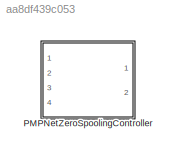
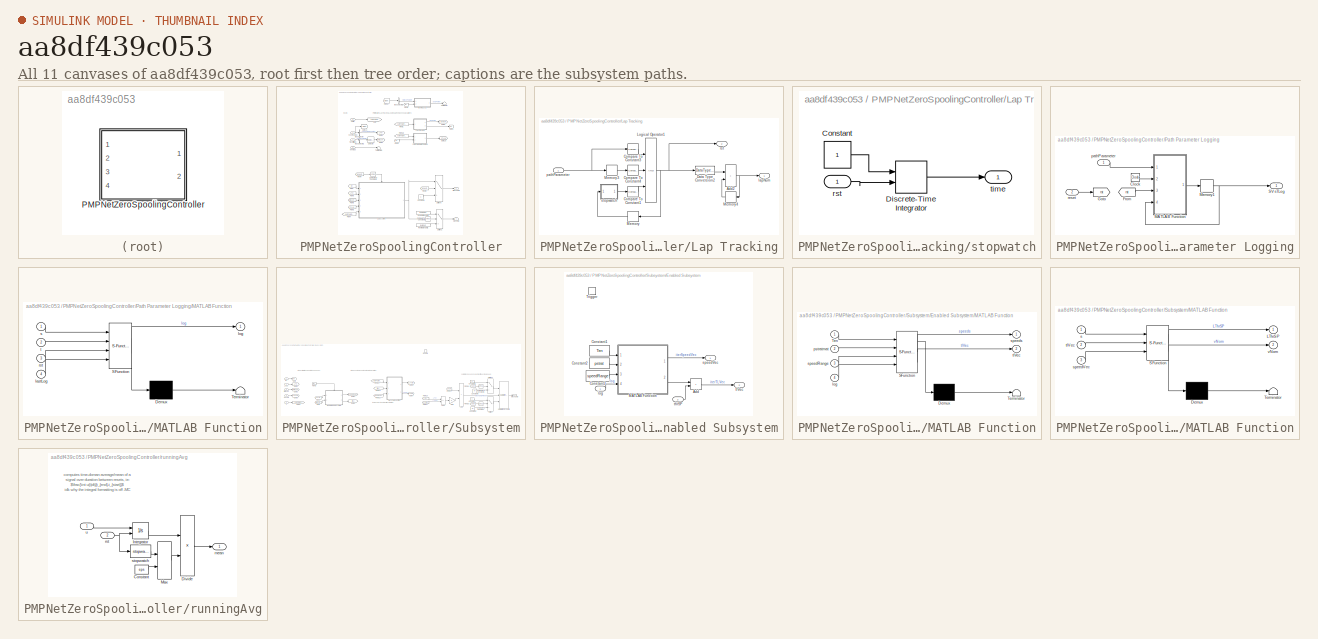
[diagram: thumbnail index - all 11 canvases of the model, root first then tree order]
MODEL slx_aa8df439c053
KIND library
CONFIG AbsTol = auto
CONFIG EnableMultiTasking = off
CONFIG FixedStep = auto
CONFIG MaxStep = auto
CONFIG MinStep = auto
CONFIG RelTol = 1e-3
CONFIG SampleTimeConstraint = Unconstrained
CONFIG SolverName = VariableStepAuto
CONFIG StartTime = 0.0
CONFIG StopTime = 10.0
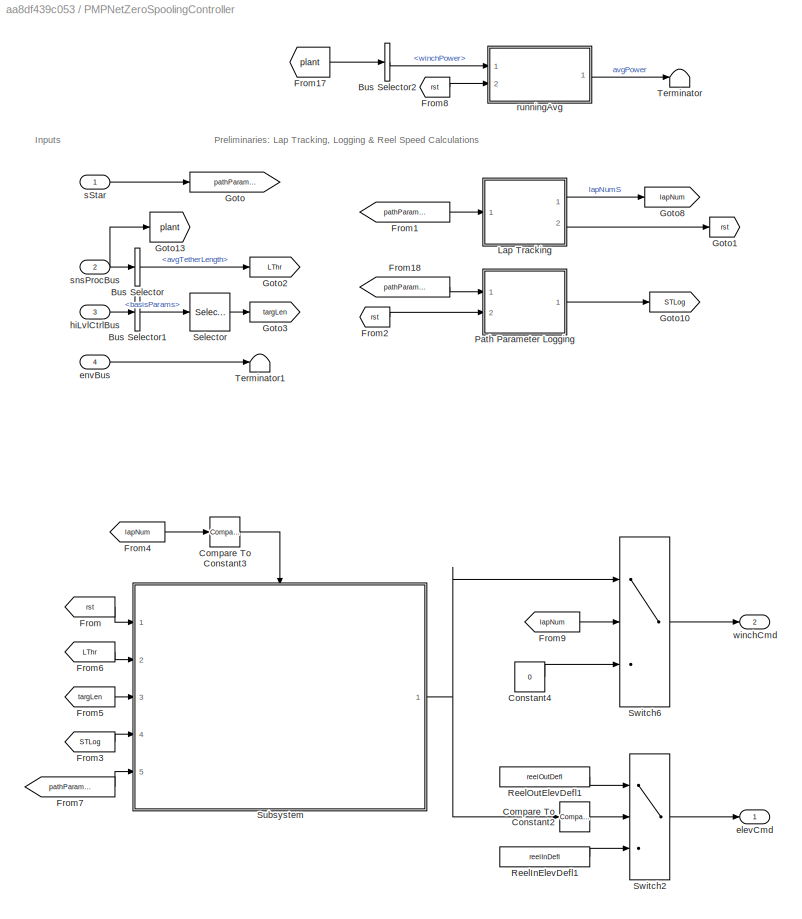
BLOCK [SubSystem] PMPNetZeroSpoolingController
  Ports = [4, 2]
  RequestExecContextInheritance = off
  VariantControl = strcmpi(SPOOLINGCONTROLLER,'PMPNetZeroSpoolingController')
BLOCK [BusSelector] PMPNetZeroSpoolingController/Bus Selector
  OutputSignals = avgTetherLength
  Ports = [1, 1]
BLOCK [BusSelector] PMPNetZeroSpoolingController/Bus Selector1
  OutputSignals = basisParams
  Ports = [1, 1]
BLOCK [BusSelector] PMPNetZeroSpoolingController/Bus Selector2
  OutputSignals = winchPower
  Ports = [1, 1]
BLOCK [Reference] PMPNetZeroSpoolingController/Compare To Constant2  REF=simulink/Logic and Bit
Operations/Compare
To Constant
  Ports = [1, 1]
  SourceBlock = simulink/Logic and Bit\nOperations/Compare\nTo Constant
  SourceProductBaseCode = SL
  SourceType = Compare To Constant
BLOCK [Reference] PMPNetZeroSpoolingController/Compare To Constant3  REF=simulink/Logic and Bit
Operations/Compare
To Constant
  Ports = [1, 1]
  SourceBlock = simulink/Logic and Bit\nOperations/Compare\nTo Constant
  SourceProductBaseCode = SL
  SourceType = Compare To Constant
BLOCK [Constant] PMPNetZeroSpoolingController/Constant4
  Value = 0
BLOCK [From] PMPNetZeroSpoolingController/From
  GotoTag = rst
BLOCK [From] PMPNetZeroSpoolingController/From1
  GotoTag = pathParameter
BLOCK [From] PMPNetZeroSpoolingController/From17
  GotoTag = plant
BLOCK [From] PMPNetZeroSpoolingController/From18
  GotoTag = pathParameter
BLOCK [From] PMPNetZeroSpoolingController/From2
  GotoTag = rst
BLOCK [From] PMPNetZeroSpoolingController/From3
  GotoTag = STLog
BLOCK [From] PMPNetZeroSpoolingController/From4
  GotoTag = lapNum
BLOCK [From] PMPNetZeroSpoolingController/From5
  GotoTag = targLen
BLOCK [From] PMPNetZeroSpoolingController/From6
  GotoTag = LThr
BLOCK [From] PMPNetZeroSpoolingController/From7
  GotoTag = pathParameter
BLOCK [From] PMPNetZeroSpoolingController/From8
  GotoTag = rst
BLOCK [From] PMPNetZeroSpoolingController/From9
  GotoTag = lapNum
BLOCK [Goto] PMPNetZeroSpoolingController/Goto
  GotoTag = pathParameter
BLOCK [Goto] PMPNetZeroSpoolingController/Goto1
  GotoTag = rst
BLOCK [Goto] PMPNetZeroSpoolingController/Goto10
  GotoTag = STLog
BLOCK [Goto] PMPNetZeroSpoolingController/Goto13
  GotoTag = plant
BLOCK [Goto] PMPNetZeroSpoolingController/Goto2
  GotoTag = LThr
BLOCK [Goto] PMPNetZeroSpoolingController/Goto3
  GotoTag = targLen
BLOCK [Goto] PMPNetZeroSpoolingController/Goto8
  GotoTag = lapNum
BLOCK [SubSystem] PMPNetZeroSpoolingController/Lap Tracking
  Ports = [1, 2]
  RequestExecContextInheritance = off
BLOCK [Sum] PMPNetZeroSpoolingController/Lap Tracking/Add2
  IconShape = rectangular
  Ports = [2, 1]
BLOCK [Reference] PMPNetZeroSpoolingController/Lap Tracking/Compare To Constant1  REF=simulink/Logic and Bit
Operations/Compare
To Constant
  Ports = [1, 1]
  SourceBlock = simulink/Logic and Bit\nOperations/Compare\nTo Constant
  SourceProductBaseCode = SL
  SourceType = Compare To Constant
BLOCK [Reference] PMPNetZeroSpoolingController/Lap Tracking/Compare To Constant3  REF=simulink/Logic and Bit
Operations/Compare
To Constant
  Ports = [1, 1]
  SourceBlock = simulink/Logic and Bit\nOperations/Compare\nTo Constant
  SourceProductBaseCode = SL
  SourceType = Compare To Constant
BLOCK [Reference] PMPNetZeroSpoolingController/Lap Tracking/Compare To Constant4  REF=simulink/Logic and Bit
Operations/Compare
To Constant
  Ports = [1, 1]
  SourceBlock = simulink/Logic and Bit\nOperations/Compare\nTo Constant
  SourceProductBaseCode = SL
  SourceType = Compare To Constant
BLOCK [DataTypeConversion] PMPNetZeroSpoolingController/Lap Tracking/Data Type Conversion2
  OutDataTypeStr = double
  RndMeth = Floor
  SaturateOnIntegerOverflow = off
BLOCK [Logic] PMPNetZeroSpoolingController/Lap Tracking/Logical Operator1
  AllPortsSameDT = off
  Inputs = 3
  OutDataTypeStr = boolean
  Ports = [3, 1]
BLOCK [Memory] PMPNetZeroSpoolingController/Lap Tracking/Memory
  InitialCondition = false
BLOCK [Memory] PMPNetZeroSpoolingController/Lap Tracking/Memory3
BLOCK [Memory] PMPNetZeroSpoolingController/Lap Tracking/Memory4
BLOCK [Outport] PMPNetZeroSpoolingController/Lap Tracking/lapNum
  VectorParamsAs1DForOutWhenUnconnected = off
BLOCK [Inport] PMPNetZeroSpoolingController/Lap Tracking/pathParameter
BLOCK [Outport] PMPNetZeroSpoolingController/Lap Tracking/rst
  Port = 2
  VectorParamsAs1DForOutWhenUnconnected = off
BLOCK [SubSystem] PMPNetZeroSpoolingController/Lap Tracking/stopwatch
  AncestorBlock = stopwatch_ul/stopwatch
  Ports = [1, 1]
  RequestExecContextInheritance = off
BLOCK [Constant] PMPNetZeroSpoolingController/Lap Tracking/stopwatch/Constant
BLOCK [DiscreteIntegrator] PMPNetZeroSpoolingController/Lap Tracking/stopwatch/Discrete-Time Integrator
  ExternalReset = rising
  ICPrevOutput = DiscIntNeverNeededParam
  ICPrevScaledInput = DiscIntNeverNeededParam
  InitialConditionSetting = Auto
  Ports = [2, 1]
  SampleTime = -1
BLOCK [Inport] PMPNetZeroSpoolingController/Lap Tracking/stopwatch/rst
BLOCK [Outport] PMPNetZeroSpoolingController/Lap Tracking/stopwatch/time
  VectorParamsAs1DForOutWhenUnconnected = off
BLOCK [SubSystem] PMPNetZeroSpoolingController/Path Parameter Logging
  Ports = [2, 1]
  RequestExecContextInheritance = off
BLOCK [Clock] PMPNetZeroSpoolingController/Path Parameter Logging/Clock
BLOCK [From] PMPNetZeroSpoolingController/Path Parameter Logging/From
  GotoTag = rst
BLOCK [Goto] PMPNetZeroSpoolingController/Path Parameter Logging/Goto
  GotoTag = rst
BLOCK [SubSystem] PMPNetZeroSpoolingController/Path Parameter Logging/MATLAB Function
  ErrorFcn = Stateflow.Translate.translate
  PermitHierarchicalResolution = ExplicitOnly
  Ports = [4, 1]
  RequestExecContextInheritance = off
  SFBlockType = MATLAB Function
  TreatAsAtomicUnit = on
BLOCK [Demux] PMPNetZeroSpoolingController/Path Parameter Logging/MATLAB Function/ Demux 
  Outputs = 1
  Ports = [1, 1]
BLOCK [S-Function] PMPNetZeroSpoolingController/Path Parameter Logging/MATLAB Function/ SFunction 
  EnableBusSupport = off
  FunctionName = sf_sfun
  PortCounts = [4 2]
  Ports = [4, 2]
  SFcnIsStateOwnerBlock = off
  SFunctionDeploymentMode = off
  Tag = Stateflow S-Function 90
BLOCK [Terminator] PMPNetZeroSpoolingController/Path Parameter Logging/MATLAB Function/ Terminator 
BLOCK [Inport] PMPNetZeroSpoolingController/Path Parameter Logging/MATLAB Function/lastLog
  Port = 4
BLOCK [Outport] PMPNetZeroSpoolingController/Path Parameter Logging/MATLAB Function/log
  VectorParamsAs1DForOutWhenUnconnected = off
BLOCK [Inport] PMPNetZeroSpoolingController/Path Parameter Logging/MATLAB Function/rst
  Port = 3
BLOCK [Inport] PMPNetZeroSpoolingController/Path Parameter Logging/MATLAB Function/s
BLOCK [Inport] PMPNetZeroSpoolingController/Path Parameter Logging/MATLAB Function/t
  Port = 2
BLOCK [Memory] PMPNetZeroSpoolingController/Path Parameter Logging/Memory1
  InitialCondition = zeros(1000,2)
BLOCK [Outport] PMPNetZeroSpoolingController/Path Parameter Logging/SVsTLog
  VectorParamsAs1DForOutWhenUnconnected = off
BLOCK [Inport] PMPNetZeroSpoolingController/Path Parameter Logging/pathParameter
BLOCK [Inport] PMPNetZeroSpoolingController/Path Parameter Logging/reset
  Port = 2
BLOCK [Constant] PMPNetZeroSpoolingController/ReelInElevDefl1
  Value = reelInDefl
BLOCK [Constant] PMPNetZeroSpoolingController/ReelOutElevDefl1
  Value = reelOutDefl
BLOCK [Selector] PMPNetZeroSpoolingController/Selector
  IndexOptions = Index vector (dialog)
  Indices = 5
  InputPortWidth = 5
  OutputSizes = 1
  Ports = [1, 1]
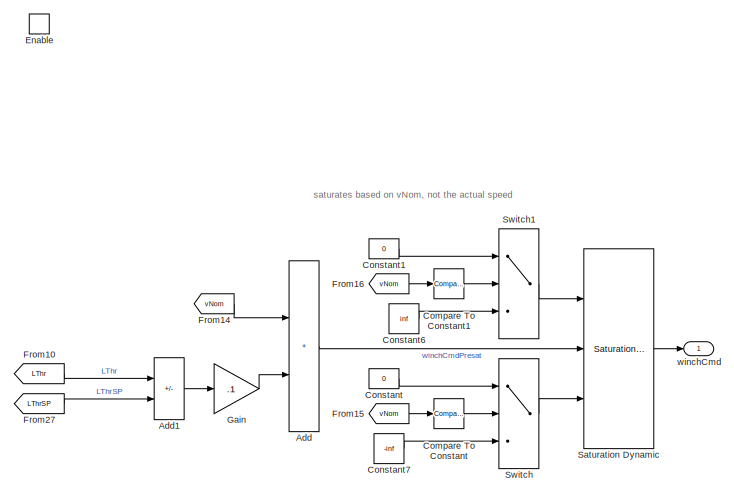
[diagram: PMPNetZeroSpoolingController/Subsystem - part 1/2, right side, full height]
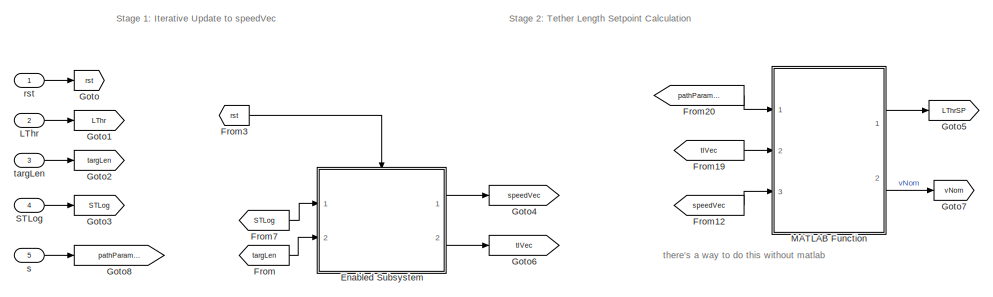
[diagram: PMPNetZeroSpoolingController/Subsystem - part 2/2, middle left region]
BLOCK [SubSystem] PMPNetZeroSpoolingController/Subsystem
  Ports = [5, 1, 1]
  RequestExecContextInheritance = off
BLOCK [Sum] PMPNetZeroSpoolingController/Subsystem/Add
  IconShape = rectangular
  Ports = [2, 1]
BLOCK [Sum] PMPNetZeroSpoolingController/Subsystem/Add1
  IconShape = rectangular
  Inputs = -+
  Ports = [2, 1]
BLOCK [Reference] PMPNetZeroSpoolingController/Subsystem/Compare To Constant  REF=simulink/Logic and Bit
Operations/Compare
To Constant
  Ports = [1, 1]
  SourceBlock = simulink/Logic and Bit\nOperations/Compare\nTo Constant
  SourceProductBaseCode = SL
  SourceType = Compare To Constant
BLOCK [Reference] PMPNetZeroSpoolingController/Subsystem/Compare To Constant1  REF=simulink/Logic and Bit
Operations/Compare
To Constant
  Ports = [1, 1]
  SourceBlock = simulink/Logic and Bit\nOperations/Compare\nTo Constant
  SourceProductBaseCode = SL
  SourceType = Compare To Constant
BLOCK [Constant] PMPNetZeroSpoolingController/Subsystem/Constant
  Value = 0
BLOCK [Constant] PMPNetZeroSpoolingController/Subsystem/Constant1
  Value = 0
BLOCK [Constant] PMPNetZeroSpoolingController/Subsystem/Constant6
  Value = inf
BLOCK [Constant] PMPNetZeroSpoolingController/Subsystem/Constant7
  Value = -inf
BLOCK [EnablePort] PMPNetZeroSpoolingController/Subsystem/Enable
  Ports = []
BLOCK [SubSystem] PMPNetZeroSpoolingController/Subsystem/Enabled Subsystem
  Ports = [2, 2, 0, 1]
  RequestExecContextInheritance = off
  TreatAsAtomicUnit = on
BLOCK [Sum] PMPNetZeroSpoolingController/Subsystem/Enabled Subsystem/Add
  IconShape = rectangular
  Ports = [2, 1]
BLOCK [Constant] PMPNetZeroSpoolingController/Subsystem/Enabled Subsystem/Constant1
  Value = Ten
BLOCK [Constant] PMPNetZeroSpoolingController/Subsystem/Enabled Subsystem/Constant2
  Value = pstrat
BLOCK [Constant] PMPNetZeroSpoolingController/Subsystem/Enabled Subsystem/Constant3
  Value = speedRange
BLOCK [SubSystem] PMPNetZeroSpoolingController/Subsystem/Enabled Subsystem/MATLAB Function
  ErrorFcn = Stateflow.Translate.translate
  PermitHierarchicalResolution = ExplicitOnly
  Ports = [4, 2]
  RequestExecContextInheritance = off
  SFBlockType = MATLAB Function
  TreatAsAtomicUnit = on
BLOCK [Demux] PMPNetZeroSpoolingController/Subsystem/Enabled Subsystem/MATLAB Function/ Demux 
  Outputs = 1
  Ports = [1, 1]
BLOCK [S-Function] PMPNetZeroSpoolingController/Subsystem/Enabled Subsystem/MATLAB Function/ SFunction 
  EnableBusSupport = off
  FunctionName = sf_sfun
  PortCounts = [4 3]
  Ports = [4, 3]
  SFcnIsStateOwnerBlock = off
  SFunctionDeploymentMode = off
  Tag = Stateflow S-Function 91
BLOCK [Terminator] PMPNetZeroSpoolingController/Subsystem/Enabled Subsystem/MATLAB Function/ Terminator 
BLOCK [Inport] PMPNetZeroSpoolingController/Subsystem/Enabled Subsystem/MATLAB Function/Ten
BLOCK [Inport] PMPNetZeroSpoolingController/Subsystem/Enabled Subsystem/MATLAB Function/log
  Port = 4
BLOCK [Inport] PMPNetZeroSpoolingController/Subsystem/Enabled Subsystem/MATLAB Function/pstratmat
  Port = 2
BLOCK [Inport] PMPNetZeroSpoolingController/Subsystem/Enabled Subsystem/MATLAB Function/speedRange
  Port = 3
BLOCK [Outport] PMPNetZeroSpoolingController/Subsystem/Enabled Subsystem/MATLAB Function/speeds
  VectorParamsAs1DForOutWhenUnconnected = off
BLOCK [Outport] PMPNetZeroSpoolingController/Subsystem/Enabled Subsystem/MATLAB Function/tlVec
  Port = 2
  VectorParamsAs1DForOutWhenUnconnected = off
BLOCK [TriggerPort] PMPNetZeroSpoolingController/Subsystem/Enabled Subsystem/Trigger
  PortDimensions = 1
  Ports = []
  StatesWhenEnabling = held
  VariantControl = Variant
BLOCK [Inport] PMPNetZeroSpoolingController/Subsystem/Enabled Subsystem/log
BLOCK [Outport] PMPNetZeroSpoolingController/Subsystem/Enabled Subsystem/speedVec
  VectorParamsAs1DForOutWhenUnconnected = off
BLOCK [Inport] PMPNetZeroSpoolingController/Subsystem/Enabled Subsystem/thrSP 
  Port = 2
BLOCK [Outport] PMPNetZeroSpoolingController/Subsystem/Enabled Subsystem/tlVec
  Port = 2
  VectorParamsAs1DForOutWhenUnconnected = off
BLOCK [From] PMPNetZeroSpoolingController/Subsystem/From
  GotoTag = targLen
BLOCK [From] PMPNetZeroSpoolingController/Subsystem/From10
  GotoTag = LThr
BLOCK [From] PMPNetZeroSpoolingController/Subsystem/From12
  GotoTag = speedVec
BLOCK [From] PMPNetZeroSpoolingController/Subsystem/From14
  GotoTag = vNom
BLOCK [From] PMPNetZeroSpoolingController/Subsystem/From15
  GotoTag = vNom
BLOCK [From] PMPNetZeroSpoolingController/Subsystem/From16
  GotoTag = vNom
BLOCK [From] PMPNetZeroSpoolingController/Subsystem/From19
  GotoTag = tlVec
BLOCK [From] PMPNetZeroSpoolingController/Subsystem/From20
  GotoTag = pathParameter
BLOCK [From] PMPNetZeroSpoolingController/Subsystem/From27
  GotoTag = LThrSP
BLOCK [From] PMPNetZeroSpoolingController/Subsystem/From3
  GotoTag = rst
BLOCK [From] PMPNetZeroSpoolingController/Subsystem/From7
  GotoTag = STLog
BLOCK [Gain] PMPNetZeroSpoolingController/Subsystem/Gain
  Gain = .1
BLOCK [Goto] PMPNetZeroSpoolingController/Subsystem/Goto
  GotoTag = rst
BLOCK [Goto] PMPNetZeroSpoolingController/Subsystem/Goto1
  GotoTag = LThr
BLOCK [Goto] PMPNetZeroSpoolingController/Subsystem/Goto2
  GotoTag = targLen
BLOCK [Goto] PMPNetZeroSpoolingController/Subsystem/Goto3
  GotoTag = STLog
BLOCK [Goto] PMPNetZeroSpoolingController/Subsystem/Goto4
  GotoTag = speedVec
BLOCK [Goto] PMPNetZeroSpoolingController/Subsystem/Goto5
  GotoTag = LThrSP
BLOCK [Goto] PMPNetZeroSpoolingController/Subsystem/Goto6
  GotoTag = tlVec
BLOCK [Goto] PMPNetZeroSpoolingController/Subsystem/Goto7
  GotoTag = vNom
BLOCK [Goto] PMPNetZeroSpoolingController/Subsystem/Goto8
  GotoTag = pathParameter
BLOCK [Inport] PMPNetZeroSpoolingController/Subsystem/LThr
  Port = 2
BLOCK [SubSystem] PMPNetZeroSpoolingController/Subsystem/MATLAB Function
  ErrorFcn = Stateflow.Translate.translate
  PermitHierarchicalResolution = ExplicitOnly
  Ports = [3, 2]
  RequestExecContextInheritance = off
  SFBlockType = MATLAB Function
  TreatAsAtomicUnit = on
BLOCK [Demux] PMPNetZeroSpoolingController/Subsystem/MATLAB Function/ Demux 
  Outputs = 1
  Ports = [1, 1]
BLOCK [S-Function] PMPNetZeroSpoolingController/Subsystem/MATLAB Function/ SFunction 
  EnableBusSupport = off
  FunctionName = sf_sfun
  PortCounts = [3 3]
  Ports = [3, 3]
  SFcnIsStateOwnerBlock = off
  SFunctionDeploymentMode = off
  Tag = Stateflow S-Function 93
BLOCK [Terminator] PMPNetZeroSpoolingController/Subsystem/MATLAB Function/ Terminator 
BLOCK [Outport] PMPNetZeroSpoolingController/Subsystem/MATLAB Function/LThrSP
  VectorParamsAs1DForOutWhenUnconnected = off
BLOCK [Inport] PMPNetZeroSpoolingController/Subsystem/MATLAB Function/s
BLOCK [Inport] PMPNetZeroSpoolingController/Subsystem/MATLAB Function/speedVec
  Port = 3
BLOCK [Inport] PMPNetZeroSpoolingController/Subsystem/MATLAB Function/tlVec
  Port = 2
BLOCK [Outport] PMPNetZeroSpoolingController/Subsystem/MATLAB Function/vNom
  Port = 2
  VectorParamsAs1DForOutWhenUnconnected = off
BLOCK [Inport] PMPNetZeroSpoolingController/Subsystem/STLog
  Port = 4
BLOCK [Reference] PMPNetZeroSpoolingController/Subsystem/Saturation Dynamic  REF=simulink/Discontinuities/Saturation
Dynamic
  Ports = [3, 1]
  SourceBlock = simulink/Discontinuities/Saturation\nDynamic
  SourceProductBaseCode = SL
  SourceType = Saturation Dynamic
BLOCK [Switch] PMPNetZeroSpoolingController/Subsystem/Switch
  Criteria = u2 > Threshold
  InputSameDT = off
  SaturateOnIntegerOverflow = off
BLOCK [Switch] PMPNetZeroSpoolingController/Subsystem/Switch1
  Criteria = u2 > Threshold
  InputSameDT = off
  SaturateOnIntegerOverflow = off
BLOCK [Inport] PMPNetZeroSpoolingController/Subsystem/rst
BLOCK [Inport] PMPNetZeroSpoolingController/Subsystem/s
  Port = 5
BLOCK [Inport] PMPNetZeroSpoolingController/Subsystem/targLen
  Port = 3
BLOCK [Outport] PMPNetZeroSpoolingController/Subsystem/winchCmd
  InitialOutput = [0]
  VectorParamsAs1DForOutWhenUnconnected = off
BLOCK [Switch] PMPNetZeroSpoolingController/Switch2
  Criteria = u2 > Threshold
  InputSameDT = off
  SaturateOnIntegerOverflow = off
BLOCK [Switch] PMPNetZeroSpoolingController/Switch6
  Criteria = u2 > Threshold
  InputSameDT = off
  SaturateOnIntegerOverflow = off
BLOCK [Terminator] PMPNetZeroSpoolingController/Terminator
BLOCK [Terminator] PMPNetZeroSpoolingController/Terminator1
BLOCK [Outport] PMPNetZeroSpoolingController/elevCmd
  VectorParamsAs1DForOutWhenUnconnected = off
BLOCK [Inport] PMPNetZeroSpoolingController/envBus
  OutDataTypeStr = Bus: envBus
  Port = 4
BLOCK [Inport] PMPNetZeroSpoolingController/hiLvlCtrlBus
  OutDataTypeStr = Bus: hiLvlCtrlBus
  Port = 3
BLOCK [SubSystem] PMPNetZeroSpoolingController/runningAvg
  AncestorBlock = runningAvg_ul/runningAvg
  Ports = [2, 1]
  RequestExecContextInheritance = off
BLOCK [Constant] PMPNetZeroSpoolingController/runningAvg/Constant
  Value = eps
BLOCK [Product] PMPNetZeroSpoolingController/runningAvg/Divide
  Inputs = */
  Ports = [2, 1]
BLOCK [Integrator] PMPNetZeroSpoolingController/runningAvg/Integrator
  ExternalReset = rising
  Ports = [2, 1]
BLOCK [MinMax] PMPNetZeroSpoolingController/runningAvg/Max
  Function = max
  Inputs = 2
  Ports = [2, 1]
BLOCK [Outport] PMPNetZeroSpoolingController/runningAvg/mean
  VectorParamsAs1DForOutWhenUnconnected = off
BLOCK [Inport] PMPNetZeroSpoolingController/runningAvg/rst
  Port = 2
BLOCK [Reference] PMPNetZeroSpoolingController/runningAvg/stopwatch  REF=stopwatch_ul/stopwatch  (lib defined in slx_5231e8830116, slx_6b86a6863970)
  Ports = [1, 1]
  SourceBlock = stopwatch_ul/stopwatch
  SourceType = SubSystem
BLOCK [Inport] PMPNetZeroSpoolingController/runningAvg/u
BLOCK [Inport] PMPNetZeroSpoolingController/sStar 
BLOCK [Inport] PMPNetZeroSpoolingController/snsProcBus
  OutDataTypeStr = Bus: sensorsProcessingBus
  Port = 2
BLOCK [Outport] PMPNetZeroSpoolingController/winchCmd 
  Port = 2
  VectorParamsAs1DForOutWhenUnconnected = off
ANNOTATION PMPNetZeroSpoolingController: Inputs
ANNOTATION PMPNetZeroSpoolingController: Preliminaries: Lap Tracking, Logging & Reel Speed Calculations
ANNOTATION PMPNetZeroSpoolingController/Subsystem: Stage 1: Iterative Update to speedVec
ANNOTATION PMPNetZeroSpoolingController/Subsystem: Stage 2: Tether Length Setpoint Calculation
ANNOTATION PMPNetZeroSpoolingController/Subsystem: saturates based on vNom, not the actual speed
ANNOTATION PMPNetZeroSpoolingController/Subsystem: there's a way to do this without matlab
ANNOTATION PMPNetZeroSpoolingController/runningAvg: computes time-doman average/mean of a signal over duration between resets, ie: $\frac{\int u(t)dt}{t_{end}-t_{start}}$ idk why the integral formatting is off -MC
LINE PMPNetZeroSpoolingController/Bus Selector1:1 -> PMPNetZeroSpoolingController/Selector:1
LINE PMPNetZeroSpoolingController/Bus Selector2:1 -> PMPNetZeroSpoolingController/runningAvg:1
LINE PMPNetZeroSpoolingController/Bus Selector:1 -> PMPNetZeroSpoolingController/Goto2:1
LINE PMPNetZeroSpoolingController/Compare To Constant2:1 -> PMPNetZeroSpoolingController/Switch2:2
LINE PMPNetZeroSpoolingController/Compare To Constant3:1 -> PMPNetZeroSpoolingController/Subsystem:enable
LINE PMPNetZeroSpoolingController/Constant4:1 -> PMPNetZeroSpoolingController/Switch6:3
LINE PMPNetZeroSpoolingController/From17:1 -> PMPNetZeroSpoolingController/Bus Selector2:1
LINE PMPNetZeroSpoolingController/From18:1 -> PMPNetZeroSpoolingController/Path Parameter Logging:1
LINE PMPNetZeroSpoolingController/From1:1 -> PMPNetZeroSpoolingController/Lap Tracking:1
LINE PMPNetZeroSpoolingController/From2:1 -> PMPNetZeroSpoolingController/Path Parameter Logging:2
LINE PMPNetZeroSpoolingController/From3:1 -> PMPNetZeroSpoolingController/Subsystem:4
LINE PMPNetZeroSpoolingController/From4:1 -> PMPNetZeroSpoolingController/Compare To Constant3:1
LINE PMPNetZeroSpoolingController/From5:1 -> PMPNetZeroSpoolingController/Subsystem:3
LINE PMPNetZeroSpoolingController/From6:1 -> PMPNetZeroSpoolingController/Subsystem:2
LINE PMPNetZeroSpoolingController/From7:1 -> PMPNetZeroSpoolingController/Subsystem:5
LINE PMPNetZeroSpoolingController/From8:1 -> PMPNetZeroSpoolingController/runningAvg:2
LINE PMPNetZeroSpoolingController/From9:1 -> PMPNetZeroSpoolingController/Switch6:2
LINE PMPNetZeroSpoolingController/From:1 -> PMPNetZeroSpoolingController/Subsystem:1
NET PMPNetZeroSpoolingController/Lap Tracking/Add2:1 -> PMPNetZeroSpoolingController/Lap Tracking/Memory4:1, PMPNetZeroSpoolingController/Lap Tracking/lapNum:1
LINE PMPNetZeroSpoolingController/Lap Tracking/Compare To Constant1:1 -> PMPNetZeroSpoolingController/Lap Tracking/Logical Operator1:3
LINE PMPNetZeroSpoolingController/Lap Tracking/Compare To Constant3:1 -> PMPNetZeroSpoolingController/Lap Tracking/Logical Operator1:1
LINE PMPNetZeroSpoolingController/Lap Tracking/Compare To Constant4:1 -> PMPNetZeroSpoolingController/Lap Tracking/Logical Operator1:2
LINE PMPNetZeroSpoolingController/Lap Tracking/Data Type Conversion2:1 -> PMPNetZeroSpoolingController/Lap Tracking/Add2:1
NET PMPNetZeroSpoolingController/Lap Tracking/Logical Operator1:1 -> PMPNetZeroSpoolingController/Lap Tracking/Data Type Conversion2:1, PMPNetZeroSpoolingController/Lap Tracking/Memory:1, PMPNetZeroSpoolingController/Lap Tracking/rst:1
LINE PMPNetZeroSpoolingController/Lap Tracking/Memory3:1 -> PMPNetZeroSpoolingController/Lap Tracking/Compare To Constant4:1
LINE PMPNetZeroSpoolingController/Lap Tracking/Memory4:1 -> PMPNetZeroSpoolingController/Lap Tracking/Add2:2
LINE PMPNetZeroSpoolingController/Lap Tracking/Memory:1 -> PMPNetZeroSpoolingController/Lap Tracking/stopwatch:1
NET PMPNetZeroSpoolingController/Lap Tracking/pathParameter:1 -> PMPNetZeroSpoolingController/Lap Tracking/Compare To Constant3:1, PMPNetZeroSpoolingController/Lap Tracking/Memory3:1
LINE PMPNetZeroSpoolingController/Lap Tracking/stopwatch:1 -> PMPNetZeroSpoolingController/Lap Tracking/Compare To Constant1:1
LINE PMPNetZeroSpoolingController/Lap Tracking:1 -> PMPNetZeroSpoolingController/Goto8:1
LINE PMPNetZeroSpoolingController/Lap Tracking:2 -> PMPNetZeroSpoolingController/Goto1:1
LINE PMPNetZeroSpoolingController/Path Parameter Logging/Clock:1 -> PMPNetZeroSpoolingController/Path Parameter Logging/MATLAB Function:2
LINE PMPNetZeroSpoolingController/Path Parameter Logging/From:1 -> PMPNetZeroSpoolingController/Path Parameter Logging/MATLAB Function:3
LINE PMPNetZeroSpoolingController/Path Parameter Logging/MATLAB Function:1 -> PMPNetZeroSpoolingController/Path Parameter Logging/Memory1:1
NET PMPNetZeroSpoolingController/Path Parameter Logging/Memory1:1 -> PMPNetZeroSpoolingController/Path Parameter Logging/MATLAB Function:4, PMPNetZeroSpoolingController/Path Parameter Logging/SVsTLog:1
LINE PMPNetZeroSpoolingController/Path Parameter Logging/pathParameter:1 -> PMPNetZeroSpoolingController/Path Parameter Logging/MATLAB Function:1
LINE PMPNetZeroSpoolingController/Path Parameter Logging/reset:1 -> PMPNetZeroSpoolingController/Path Parameter Logging/Goto:1
LINE PMPNetZeroSpoolingController/Path Parameter Logging:1 -> PMPNetZeroSpoolingController/Goto10:1
LINE PMPNetZeroSpoolingController/ReelInElevDefl1:1 -> PMPNetZeroSpoolingController/Switch2:3
LINE PMPNetZeroSpoolingController/ReelOutElevDefl1:1 -> PMPNetZeroSpoolingController/Switch2:1
LINE PMPNetZeroSpoolingController/Selector:1 -> PMPNetZeroSpoolingController/Goto3:1
LINE PMPNetZeroSpoolingController/Subsystem/Add1:1 -> PMPNetZeroSpoolingController/Subsystem/Gain:1
LINE PMPNetZeroSpoolingController/Subsystem/Add:1 -> PMPNetZeroSpoolingController/Subsystem/Saturation Dynamic:2
LINE PMPNetZeroSpoolingController/Subsystem/Compare To Constant1:1 -> PMPNetZeroSpoolingController/Subsystem/Switch1:2
LINE PMPNetZeroSpoolingController/Subsystem/Compare To Constant:1 -> PMPNetZeroSpoolingController/Subsystem/Switch:2
LINE PMPNetZeroSpoolingController/Subsystem/Constant1:1 -> PMPNetZeroSpoolingController/Subsystem/Switch1:1
LINE PMPNetZeroSpoolingController/Subsystem/Constant6:1 -> PMPNetZeroSpoolingController/Subsystem/Switch1:3
LINE PMPNetZeroSpoolingController/Subsystem/Constant7:1 -> PMPNetZeroSpoolingController/Subsystem/Switch:3
LINE PMPNetZeroSpoolingController/Subsystem/Constant:1 -> PMPNetZeroSpoolingController/Subsystem/Switch:1
LINE PMPNetZeroSpoolingController/Subsystem/Enabled Subsystem/Add:1 -> PMPNetZeroSpoolingController/Subsystem/Enabled Subsystem/tlVec:1
LINE PMPNetZeroSpoolingController/Subsystem/Enabled Subsystem/Constant1:1 -> PMPNetZeroSpoolingController/Subsystem/Enabled Subsystem/MATLAB Function:1
LINE PMPNetZeroSpoolingController/Subsystem/Enabled Subsystem/Constant2:1 -> PMPNetZeroSpoolingController/Subsystem/Enabled Subsystem/MATLAB Function:2
LINE PMPNetZeroSpoolingController/Subsystem/Enabled Subsystem/Constant3:1 -> PMPNetZeroSpoolingController/Subsystem/Enabled Subsystem/MATLAB Function:3
LINE PMPNetZeroSpoolingController/Subsystem/Enabled Subsystem/MATLAB Function:1 -> PMPNetZeroSpoolingController/Subsystem/Enabled Subsystem/speedVec:1
LINE PMPNetZeroSpoolingController/Subsystem/Enabled Subsystem/MATLAB Function:2 -> PMPNetZeroSpoolingController/Subsystem/Enabled Subsystem/Add:1
LINE PMPNetZeroSpoolingController/Subsystem/Enabled Subsystem/log:1 -> PMPNetZeroSpoolingController/Subsystem/Enabled Subsystem/MATLAB Function:4
LINE PMPNetZeroSpoolingController/Subsystem/Enabled Subsystem/thrSP :1 -> PMPNetZeroSpoolingController/Subsystem/Enabled Subsystem/Add:2
LINE PMPNetZeroSpoolingController/Subsystem/Enabled Subsystem:1 -> PMPNetZeroSpoolingController/Subsystem/Goto4:1
LINE PMPNetZeroSpoolingController/Subsystem/Enabled Subsystem:2 -> PMPNetZeroSpoolingController/Subsystem/Goto6:1
LINE PMPNetZeroSpoolingController/Subsystem/From10:1 -> PMPNetZeroSpoolingController/Subsystem/Add1:1
LINE PMPNetZeroSpoolingController/Subsystem/From12:1 -> PMPNetZeroSpoolingController/Subsystem/MATLAB Function:3
LINE PMPNetZeroSpoolingController/Subsystem/From14:1 -> PMPNetZeroSpoolingController/Subsystem/Add:1
LINE PMPNetZeroSpoolingController/Subsystem/From15:1 -> PMPNetZeroSpoolingController/Subsystem/Compare To Constant:1
LINE PMPNetZeroSpoolingController/Subsystem/From16:1 -> PMPNetZeroSpoolingController/Subsystem/Compare To Constant1:1
LINE PMPNetZeroSpoolingController/Subsystem/From19:1 -> PMPNetZeroSpoolingController/Subsystem/MATLAB Function:2
LINE PMPNetZeroSpoolingController/Subsystem/From20:1 -> PMPNetZeroSpoolingController/Subsystem/MATLAB Function:1
LINE PMPNetZeroSpoolingController/Subsystem/From27:1 -> PMPNetZeroSpoolingController/Subsystem/Add1:2
LINE PMPNetZeroSpoolingController/Subsystem/From3:1 -> PMPNetZeroSpoolingController/Subsystem/Enabled Subsystem:trigger
LINE PMPNetZeroSpoolingController/Subsystem/From7:1 -> PMPNetZeroSpoolingController/Subsystem/Enabled Subsystem:1
LINE PMPNetZeroSpoolingController/Subsystem/From:1 -> PMPNetZeroSpoolingController/Subsystem/Enabled Subsystem:2
LINE PMPNetZeroSpoolingController/Subsystem/Gain:1 -> PMPNetZeroSpoolingController/Subsystem/Add:2
LINE PMPNetZeroSpoolingController/Subsystem/LThr:1 -> PMPNetZeroSpoolingController/Subsystem/Goto1:1
LINE PMPNetZeroSpoolingController/Subsystem/MATLAB Function:1 -> PMPNetZeroSpoolingController/Subsystem/Goto5:1
LINE PMPNetZeroSpoolingController/Subsystem/MATLAB Function:2 -> PMPNetZeroSpoolingController/Subsystem/Goto7:1
LINE PMPNetZeroSpoolingController/Subsystem/STLog:1 -> PMPNetZeroSpoolingController/Subsystem/Goto3:1
LINE PMPNetZeroSpoolingController/Subsystem/Saturation Dynamic:1 -> PMPNetZeroSpoolingController/Subsystem/winchCmd:1
LINE PMPNetZeroSpoolingController/Subsystem/Switch1:1 -> PMPNetZeroSpoolingController/Subsystem/Saturation Dynamic:1
LINE PMPNetZeroSpoolingController/Subsystem/Switch:1 -> PMPNetZeroSpoolingController/Subsystem/Saturation Dynamic:3
LINE PMPNetZeroSpoolingController/Subsystem/rst:1 -> PMPNetZeroSpoolingController/Subsystem/Goto:1
LINE PMPNetZeroSpoolingController/Subsystem/s:1 -> PMPNetZeroSpoolingController/Subsystem/Goto8:1
LINE PMPNetZeroSpoolingController/Subsystem/targLen:1 -> PMPNetZeroSpoolingController/Subsystem/Goto2:1
NET PMPNetZeroSpoolingController/Subsystem:1 -> PMPNetZeroSpoolingController/Compare To Constant2:1, PMPNetZeroSpoolingController/Switch6:1
LINE PMPNetZeroSpoolingController/Switch2:1 -> PMPNetZeroSpoolingController/elevCmd:1
LINE PMPNetZeroSpoolingController/Switch6:1 -> PMPNetZeroSpoolingController/winchCmd :1
LINE PMPNetZeroSpoolingController/envBus:1 -> PMPNetZeroSpoolingController/Terminator1:1
LINE PMPNetZeroSpoolingController/hiLvlCtrlBus:1 -> PMPNetZeroSpoolingController/Bus Selector1:1
LINE PMPNetZeroSpoolingController/runningAvg:1 -> PMPNetZeroSpoolingController/Terminator:1
LINE PMPNetZeroSpoolingController/sStar :1 -> PMPNetZeroSpoolingController/Goto:1
NET PMPNetZeroSpoolingController/snsProcBus:1 -> PMPNetZeroSpoolingController/Bus Selector:1, PMPNetZeroSpoolingController/Goto13:1
note: NET lines group one-source signal fan-out (src -> all destinations, sorted); 1:1 wires keep LINE
CHART PMPNetZeroSpoolingController/Path Parameter
Logging/MATLAB Function states=1 transitions=1
  STATE_LABEL 'eML_blk_kernel()'
  STATE_LABEL 'SCRIPT:\nfunction log = fcn(s,t,rst,lastLog)\n% function that logs the path position and time into a matrix\n% [pathPosition,t]\nif rst\n    lastLog = nan(1000,2);\nend\nlog = lastLog;\nidx = min([max([round(s*1000),1]),1000]);\nlog(idx,1) = s;\nlog(idx,2) = t;\n\n\n'
CHART PMPNetZeroSpoolingController/Subsystem/Enabled
Subsystem/MATLAB Function states=1 transitions=1
  STATE_LABEL 'eML_blk_kernel()'
  STATE_LABEL "SCRIPT:\nfunction [speeds, tlVec] = fcn(Ten, pstratmat, speedRange, log)\ncleanLog = log( and( and(log(:,1)~=0,log(:,2)~=0),and(~isnan(log(:,1)),~isnan(log(:,2))) ),:);\n% deltaVec=mean(diff(cleanLog(:,1))./diff(cleanLog(:,2)));\nevenlog=[linspace(0,1,1000)',interp1(cleanLog(:,1),cleanLog(:,2),linspace(0,1,1000)','linear','extrap')];\ndiffTime = diff(evenlog(:,2)); \ntimesteps = .5*([diffTime; diffTime(...<+1376ch>"
CHART PMPNetZeroSpoolingController/Subsystem/MATLAB Function states=1 transitions=1
  STATE_LABEL 'eML_blk_kernel()'
  STATE_LABEL 'SCRIPT:\nfunction [LThrSP,vNom] = fcn(s,tlVec,speedVec)\n    LThrSP=interp1(linspace(0,1,1000),tlVec,s);\n    vNom=interp1(linspace(0,1,1000),speedVec,s);\n'
CHART  states=0 transitions=0
CHART  states=0 transitions=0
CHART  states=0 transitions=0
